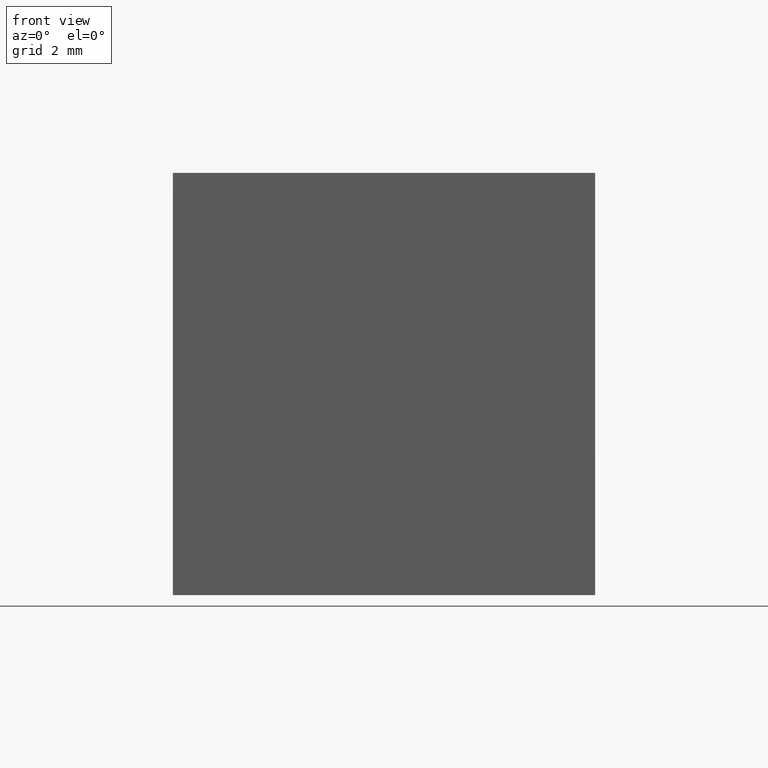
[diagram: clean part render]
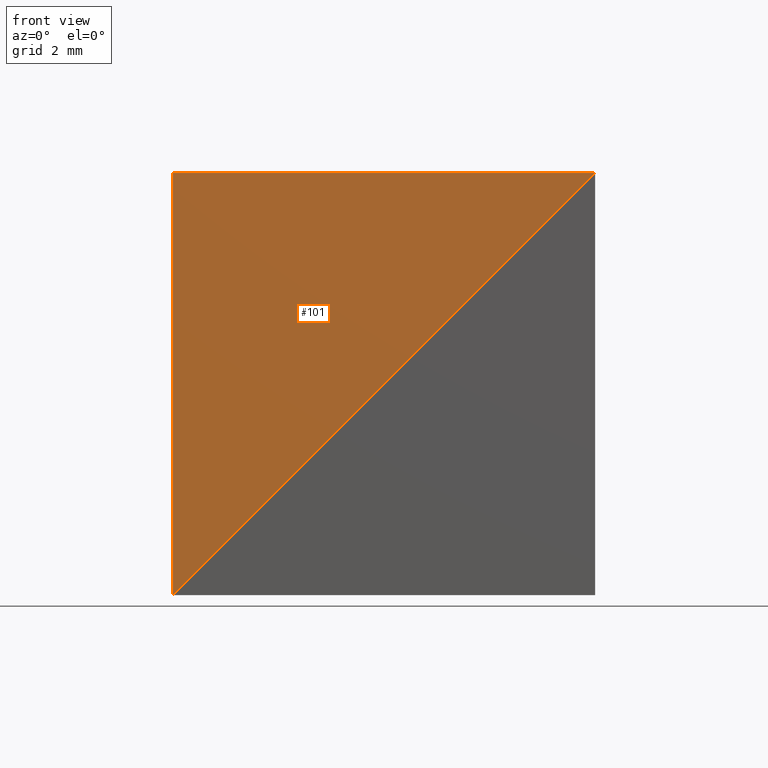
[diagram: same view with one face highlighted and labeled with its STEP entity id]
A machine part, front view. The second image highlights one B-rep face of the part: STEP entity #101.
In plain terms, the highlighted planar face has unit normal (0, 1, 0).
Its self-contained STEP definition (entity closure, byte-faithful):
#15 = VECTOR ( 'NONE', #80, 1000.000000000000000 ) ;
#18 = CARTESIAN_POINT ( 'NONE',  ( -12.50000000000000000, 0.0000000000000000000, 0.0000000000000000000 ) ) ;
#21 = CARTESIAN_POINT ( 'NONE',  ( 0.0000000000000000000, 0.0000000000000000000, 0.0000000000000000000 ) ) ;
#25 = LINE ( 'NONE', #102, #182 ) ;
#42 = DIRECTION ( 'NONE',  ( 0.7071067811865475700, 0.0000000000000000000, 0.7071067811865474600 ) ) ;
#45 = ORIENTED_EDGE ( 'NONE', *, *, #254, .T. ) ;
#53 = ORIENTED_EDGE ( 'NONE', *, *, #257, .T. ) ;
#58 = VERTEX_POINT ( 'NONE', #274 ) ;
#63 = EDGE_LOOP ( 'NONE', ( #53, #229, #45 ) ) ;
#64 = DIRECTION ( 'NONE',  ( 0.0000000000000000000, 1.000000000000000000, 0.0000000000000000000 ) ) ;
#80 = DIRECTION ( 'NONE',  ( -0.0000000000000000000, -0.0000000000000000000, -1.000000000000000000 ) ) ;
#101 = ADVANCED_FACE ( 'NONE', ( #152 ), #105, .F. ) ;
#102 = CARTESIAN_POINT ( 'NONE',  ( 0.0000000000000000000, 0.0000000000000000000, 0.0000000000000000000 ) ) ;
#105 = PLANE ( 'NONE',  #165 ) ;
#111 = VERTEX_POINT ( 'NONE', #156 ) ;
#131 = VECTOR ( 'NONE', #225, 1000.000000000000000 ) ;
#139 = LINE ( 'NONE', #18, #131 ) ;
#152 = FACE_OUTER_BOUND ( 'NONE', #63, .T. ) ;
#156 = CARTESIAN_POINT ( 'NONE',  ( 0.0000000000000000000, 0.0000000000000000000, 0.0000000000000000000 ) ) ;
#165 = AXIS2_PLACEMENT_3D ( 'NONE', #21, #64, #198 ) ;
#182 = VECTOR ( 'NONE', #42, 1000.000000000000000 ) ;
#192 = LINE ( 'NONE', #266, #15 ) ;
#195 = VERTEX_POINT ( 'NONE', #224 ) ;
#198 = DIRECTION ( 'NONE',  ( 0.0000000000000000000, -0.0000000000000000000, 1.000000000000000000 ) ) ;
#224 = CARTESIAN_POINT ( 'NONE',  ( -12.50000000000000000, -0.0000000000000000000, -12.49999999999999800 ) ) ;
#225 = DIRECTION ( 'NONE',  ( -1.000000000000000000, -0.0000000000000000000, -0.0000000000000000000 ) ) ;
#229 = ORIENTED_EDGE ( 'NONE', *, *, #278, .T. ) ;
#254 = EDGE_CURVE ( 'NONE', #58, #195, #192, .T. ) ;
#257 = EDGE_CURVE ( 'NONE', #195, #111, #25, .T. ) ;
#266 = CARTESIAN_POINT ( 'NONE',  ( -12.50000000000000000, -0.0000000000000000000, -12.49999999999999800 ) ) ;
#274 = CARTESIAN_POINT ( 'NONE',  ( -12.50000000000000000, 0.0000000000000000000, 0.0000000000000000000 ) ) ;
#278 = EDGE_CURVE ( 'NONE', #111, #58, #139, .T. ) ;